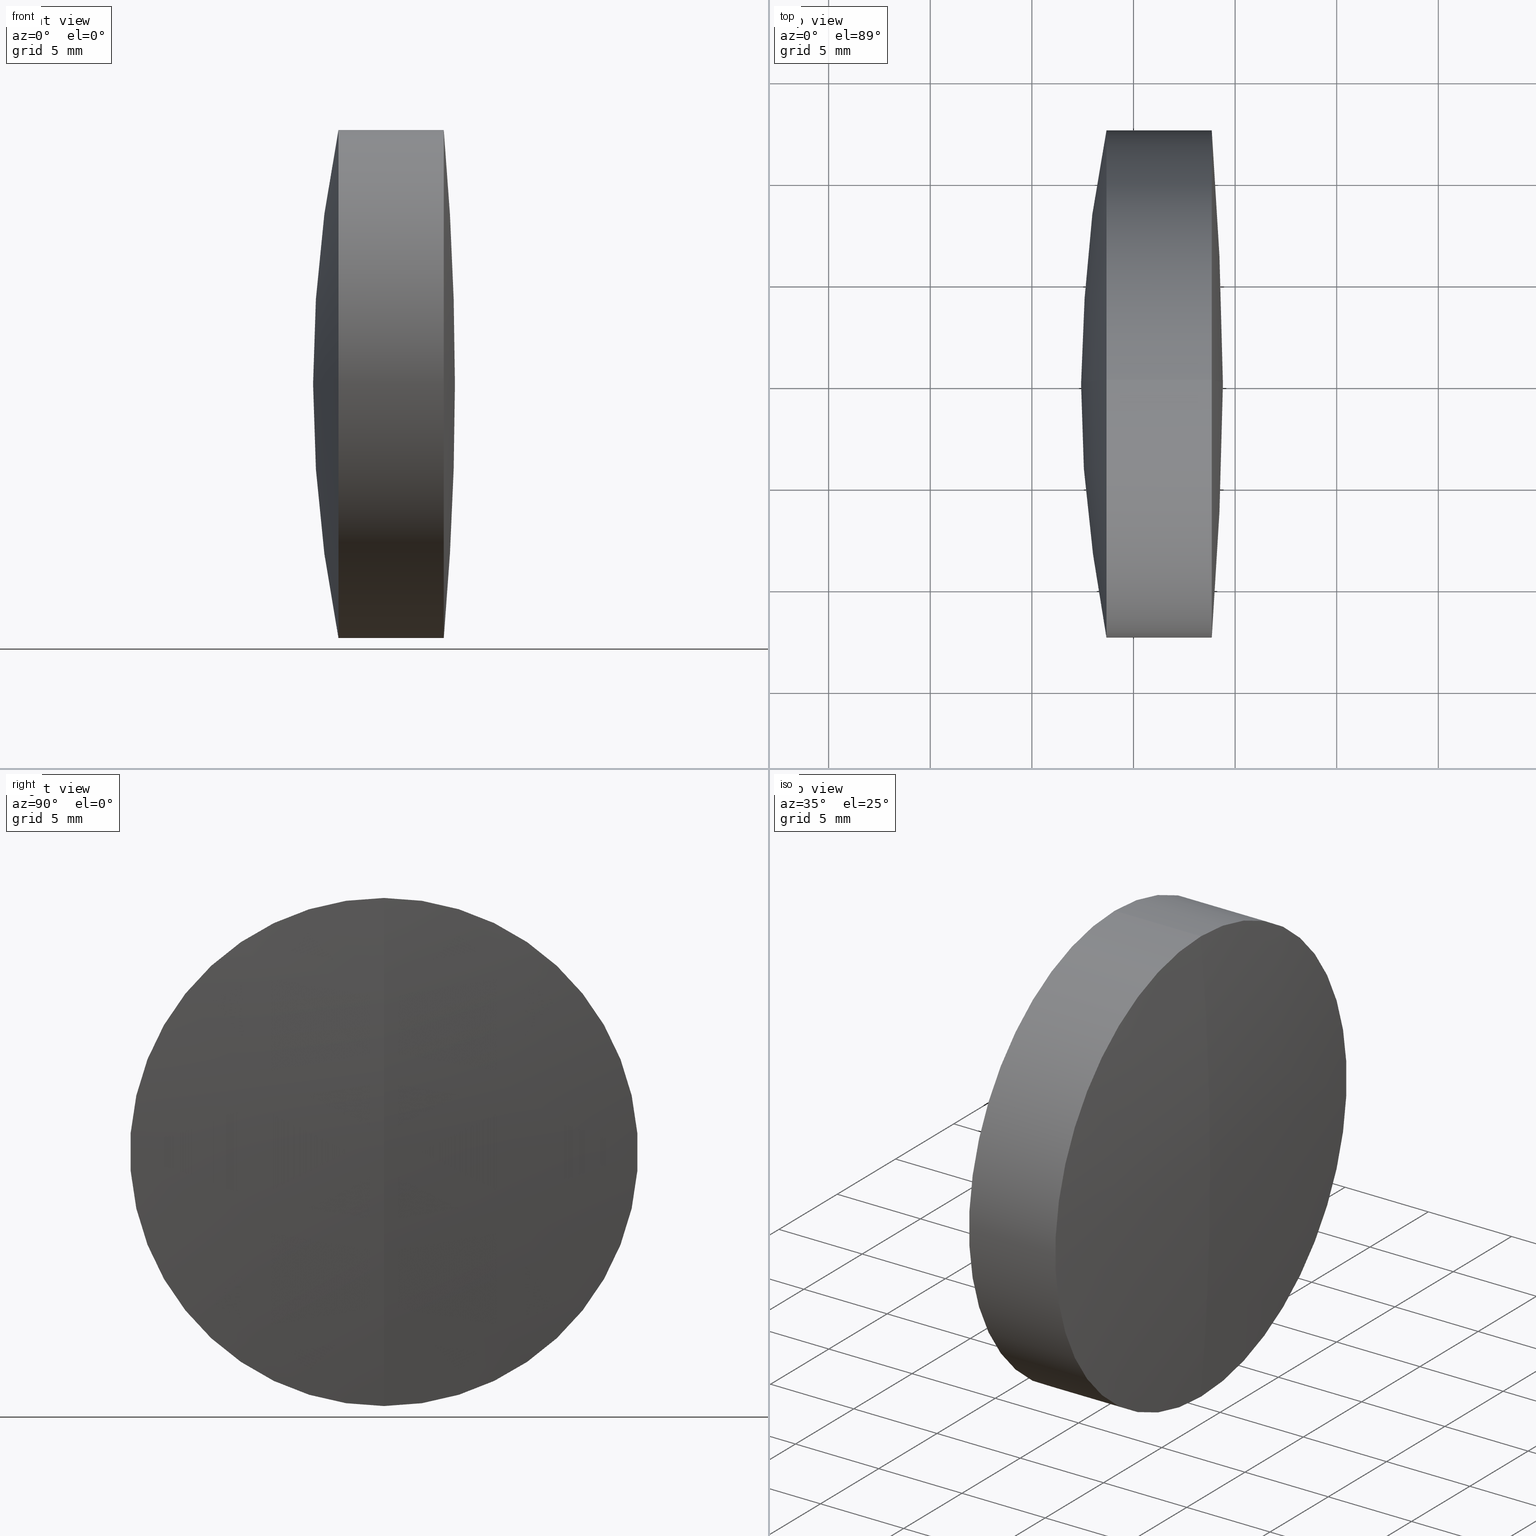
[diagram: canonical four-view strip — front | top / right | iso, engineering-drawing reading convention]
A machine part, canonical four-view strip (front | top / right | iso — engineering-drawing reading convention). The complete STEP part file that produces these views, byte-faithful:
ISO-10303-21;
HEADER;
FILE_DESCRIPTION (( 'STEP AP214' ),
    '1' );
FILE_NAME ('145042.STEP',
    '2019-05-12T03:48:51',
    ( 'user' ),
    ( '΢���й�' ),
    'SwSTEP 2.0',
    'SolidWorks 2016',
    '' );
FILE_SCHEMA (( 'AUTOMOTIVE_DESIGN' ));
ENDSEC;

DATA;
#1 = EDGE_LOOP ( 'NONE', ( #308, #330, #291 ) ) ;
#2 = EDGE_CURVE ( 'NONE', #74, #143, #54, .T. ) ;
#3 = DIRECTION ( 'NONE',  ( 0.0000000000000000000, -1.224646799147353200E-016, 1.000000000000000000 ) ) ;
#4 = AXIS2_PLACEMENT_3D ( 'NONE', #200, #98, #258 ) ;
#5 =( LENGTH_UNIT ( ) NAMED_UNIT ( * ) SI_UNIT ( .MILLI., .METRE. ) );
#6 = CARTESIAN_POINT ( 'NONE',  ( 14.87966897357473400, 0.0000000000000000000, 1.355252715606880500E-017 ) ) ;
#7 = AXIS2_PLACEMENT_3D ( 'NONE', #66, #89, #286 ) ;
#8 =( LENGTH_UNIT ( ) NAMED_UNIT ( * ) SI_UNIT ( .MILLI., .METRE. ) );
#9 = EDGE_LOOP ( 'NONE', ( #298, #135, #102, #222 ) ) ;
#10 = ORIENTED_EDGE ( 'NONE', *, *, #117, .T. ) ;
#11 = SURFACE_SIDE_STYLE ('',( #61 ) ) ;
#12 = AXIS2_PLACEMENT_3D ( 'NONE', #269, #173, #129 ) ;
#13 = APPLICATION_PROTOCOL_DEFINITION ( 'draft international standard', 'automotive_design', 1998, #296 ) ;
#14 = CARTESIAN_POINT ( 'NONE',  ( -78.10333102642515300, 0.0000000000000000000, 0.0000000000000000000 ) ) ;
#15 = FACE_OUTER_BOUND ( 'NONE', #1, .T. ) ;
#16 = CIRCLE ( 'NONE', #27, 47.02200000000010500 ) ;
#17 = APPLICATION_PROTOCOL_DEFINITION ( 'draft international standard', 'automotive_design', 1998, #210 ) ;
#18 = DIRECTION ( 'NONE',  ( 0.0000000000000000000, 0.0000000000000000000, 1.000000000000000000 ) ) ;
#19 = CARTESIAN_POINT ( 'NONE',  ( 61.90166897357483600, 0.0000000000000000000, 2.892819616631417200E-015 ) ) ;
#20 = DIRECTION ( 'NONE',  ( -1.000000000000000000, -0.0000000000000000000, -0.0000000000000000000 ) ) ;
#21 = CIRCLE ( 'NONE', #253, 63.14600000000000800 ) ;
#22 = EDGE_LOOP ( 'NONE', ( #31, #206, #306 ) ) ;
#23 = ADVANCED_FACE ( 'NONE', ( #170 ), #26, .F. ) ;
#24 = DIRECTION ( 'NONE',  ( -0.0000000000000000000, 1.000000000000000000, 1.224646799147353200E-016 ) ) ;
#25 = ORIENTED_EDGE ( 'NONE', *, *, #32, .T. ) ;
#26 = SPHERICAL_SURFACE ( 'NONE', #346, 47.02200000000010500 ) ;
#27 = AXIS2_PLACEMENT_3D ( 'NONE', #186, #268, #70 ) ;
#28 = ADVANCED_FACE ( 'NONE', ( #323 ), #138, .T. ) ;
#29 = LINE ( 'NONE', #101, #231 ) ;
#30 = SPHERICAL_SURFACE ( 'NONE', #198, 142.5050000000000000 ) ;
#31 = ORIENTED_EDGE ( 'NONE', *, *, #117, .F. ) ;
#32 = EDGE_CURVE ( 'NONE', #218, #287, #345, .T. ) ;
#33 = CARTESIAN_POINT ( 'NONE',  ( -9.702612178336682500, 1.530808498934190100E-015, -12.49999999999998900 ) ) ;
#34 =( NAMED_UNIT ( * ) SI_UNIT ( $, .STERADIAN. ) SOLID_ANGLE_UNIT ( ) );
#35 =( NAMED_UNIT ( * ) SI_UNIT ( $, .STERADIAN. ) SOLID_ANGLE_UNIT ( ) );
#36 = FACE_OUTER_BOUND ( 'NONE', #71, .T. ) ;
#37 = CARTESIAN_POINT ( 'NONE',  ( 60.20977468710700000, 0.0000000000000000000, 12.49999999999997700 ) ) ;
#38 = AXIS2_PLACEMENT_3D ( 'NONE', #216, #84, #225 ) ;
#39 =( NAMED_UNIT ( * ) PLANE_ANGLE_UNIT ( ) SI_UNIT ( $, .RADIAN. ) );
#40 = DIRECTION ( 'NONE',  ( 0.0000000000000000000, 0.0000000000000000000, 1.000000000000000000 ) ) ;
#41 =( GEOMETRIC_REPRESENTATION_CONTEXT ( 3 ) GLOBAL_UNCERTAINTY_ASSIGNED_CONTEXT ( ( #107 ) ) GLOBAL_UNIT_ASSIGNED_CONTEXT ( ( #5, #113, #226 ) ) REPRESENTATION_CONTEXT ( 'NONE', 'WORKASPACE' ) );
#42 = ORIENTED_EDGE ( 'NONE', *, *, #247, .F. ) ;
#43 = FILL_AREA_STYLE_COLOUR ( '', #278 ) ;
#44 = DIRECTION ( 'NONE',  ( 0.0000000000000000000, 0.0000000000000000000, -1.000000000000000000 ) ) ;
#45 = CYLINDRICAL_SURFACE ( 'NONE', #12, 12.49999999999998900 ) ;
#46 = CIRCLE ( 'NONE', #273, 12.49999999999998900 ) ;
#47 = EDGE_LOOP ( 'NONE', ( #347, #78, #252, #301 ) ) ;
#48 = PRESENTATION_LAYER_ASSIGNMENT (  '', '', ( #262 ) ) ;
#49 = DIRECTION ( 'NONE',  ( 0.0000000000000000000, -1.224646799147353200E-016, 1.000000000000000000 ) ) ;
#50 = CIRCLE ( 'NONE', #267, 47.02200000000010500 ) ;
#51 = ADVANCED_FACE ( 'NONE', ( #15 ), #196, .T. ) ;
#52 = ADVANCED_FACE ( 'NONE', ( #228 ), #80, .T. ) ;
#53 = FACE_OUTER_BOUND ( 'NONE', #22, .T. ) ;
#54 = CIRCLE ( 'NONE', #331, 12.49999999999998900 ) ;
#55 = ORIENTED_EDGE ( 'NONE', *, *, #294, .T. ) ;
#56 = STYLED_ITEM ( 'NONE', ( #232 ), #82 ) ;
#57 = CARTESIAN_POINT ( 'NONE',  ( 63.85238398709587700, 0.0000000000000000000, 12.49999999999997200 ) ) ;
#58 = EDGE_LOOP ( 'NONE', ( #257, #339, #25 ) ) ;
#59 = ORIENTED_EDGE ( 'NONE', *, *, #32, .F. ) ;
#60 = DIRECTION ( 'NONE',  ( -1.000000000000000000, -0.0000000000000000000, -0.0000000000000000000 ) ) ;
#61 = SURFACE_STYLE_FILL_AREA ( #201 ) ;
#62 = CIRCLE ( 'NONE', #324, 142.5050000000000000 ) ;
#63 = CARTESIAN_POINT ( 'NONE',  ( 63.85238398709587700, 0.0000000000000000000, 0.0000000000000000000 ) ) ;
#64 = ORIENTED_EDGE ( 'NONE', *, *, #112, .T. ) ;
#65 = ORIENTED_EDGE ( 'NONE', *, *, #72, .T. ) ;
#66 = CARTESIAN_POINT ( 'NONE',  ( 60.20977468710700000, 0.0000000000000000000, 0.0000000000000000000 ) ) ;
#67 = MECHANICAL_DESIGN_GEOMETRIC_PRESENTATION_REPRESENTATION (  '', ( #262 ), #88 ) ;
#68 = CARTESIAN_POINT ( 'NONE',  ( 57.42166897357473200, 0.0000000000000000000, -2.514284219101401300E-014 ) ) ;
#69 = ORIENTED_EDGE ( 'NONE', *, *, #256, .F. ) ;
#70 = DIRECTION ( 'NONE',  ( 0.0000000000000000000, 0.0000000000000000000, -1.000000000000000000 ) ) ;
#71 = EDGE_LOOP ( 'NONE', ( #309, #219, #59, #69 ) ) ;
#72 = EDGE_CURVE ( 'NONE', #191, #114, #167, .T. ) ;
#73 = DIRECTION ( 'NONE',  ( 0.0000000000000000000, 1.000000000000000000, 0.0000000000000000000 ) ) ;
#74 = VERTEX_POINT ( 'NONE', #97 ) ;
#75 = VERTEX_POINT ( 'NONE', #124 ) ;
#76 = DIRECTION ( 'NONE',  ( 0.0000000000000000000, 0.0000000000000000000, 1.000000000000000000 ) ) ;
#77 = AXIS2_PLACEMENT_3D ( 'NONE', #6, #147, #3 ) ;
#78 = ORIENTED_EDGE ( 'NONE', *, *, #288, .T. ) ;
#79 = ADVANCED_FACE ( 'NONE', ( #245 ), #246, .T. ) ;
#80 = SPHERICAL_SURFACE ( 'NONE', #95, 47.02200000000010500 ) ;
#81 = PRESENTATION_STYLE_ASSIGNMENT (( #263 ) ) ;
#82 = MANIFOLD_SOLID_BREP ( '��ת1', #272 ) ;
#83 = COLOUR_RGB ( '',1.000000000000000000, 1.000000000000000000, 1.000000000000000000 ) ;
#84 = DIRECTION ( 'NONE',  ( -1.000000000000000000, -0.0000000000000000000, -0.0000000000000000000 ) ) ;
#85 = FACE_OUTER_BOUND ( 'NONE', #146, .T. ) ;
#86 = CARTESIAN_POINT ( 'NONE',  ( -9.702612178336682500, 0.0000000000000000000, 0.0000000000000000000 ) ) ;
#87 = ORIENTED_EDGE ( 'NONE', *, *, #274, .T. ) ;
#88 =( GEOMETRIC_REPRESENTATION_CONTEXT ( 3 ) GLOBAL_UNCERTAINTY_ASSIGNED_CONTEXT ( ( #242 ) ) GLOBAL_UNIT_ASSIGNED_CONTEXT ( ( #205, #203, #35 ) ) REPRESENTATION_CONTEXT ( 'NONE', 'WORKASPACE' ) );
#89 = DIRECTION ( 'NONE',  ( -1.000000000000000000, -0.0000000000000000000, -0.0000000000000000000 ) ) ;
#90 = FACE_OUTER_BOUND ( 'NONE', #168, .T. ) ;
#91 = DIRECTION ( 'NONE',  ( -1.000000000000000000, -0.0000000000000000000, -0.0000000000000000000 ) ) ;
#92 = CARTESIAN_POINT ( 'NONE',  ( 120.5676689735747400, 0.0000000000000000000, -2.900941952996195400E-014 ) ) ;
#93 = EDGE_CURVE ( 'NONE', #75, #287, #329, .T. ) ;
#94 = ORIENTED_EDGE ( 'NONE', *, *, #288, .F. ) ;
#95 = AXIS2_PLACEMENT_3D ( 'NONE', #265, #317, #234 ) ;
#96 = SURFACE_STYLE_USAGE ( .BOTH. , #11 ) ;
#97 = CARTESIAN_POINT ( 'NONE',  ( 60.20977468710700000, 0.0000000000000000000, 12.49999999999998900 ) ) ;
#98 = DIRECTION ( 'NONE',  ( -1.000000000000000000, -0.0000000000000000000, -0.0000000000000000000 ) ) ;
#99 = DIRECTION ( 'NONE',  ( 0.0000000000000000000, 0.0000000000000000000, -1.000000000000000000 ) ) ;
#100 = CARTESIAN_POINT ( 'NONE',  ( -0.5519199926577972300, 0.0000000000000000000, 0.0000000000000000000 ) ) ;
#101 = CARTESIAN_POINT ( 'NONE',  ( -9.702612178336682500, 0.0000000000000000000, 12.49999999999998900 ) ) ;
#102 = ORIENTED_EDGE ( 'NONE', *, *, #256, .T. ) ;
#103 = CARTESIAN_POINT ( 'NONE',  ( 58.67124487653986600, 1.530808498934192300E-015, -12.50000000000003700 ) ) ;
#104 = DIRECTION ( 'NONE',  ( 0.0000000000000000000, -1.000000000000000000, 0.0000000000000000000 ) ) ;
#105 = SPHERICAL_SURFACE ( 'NONE', #277, 63.14600000000000800 ) ;
#106 = CIRCLE ( 'NONE', #303, 63.14600000000000800 ) ;
#107 = UNCERTAINTY_MEASURE_WITH_UNIT (LENGTH_MEASURE( 1.000000000000000100E-005 ), #5, 'distance_accuracy_value', 'NONE');
#108 = EDGE_CURVE ( 'NONE', #159, #110, #106, .T. ) ;
#109 = PRODUCT_DEFINITION ( 'δ֪', '', #223, #319 ) ;
#110 = VERTEX_POINT ( 'NONE', #68 ) ;
#111 = CLOSED_SHELL ( 'NONE', ( #299, #275, #166, #23, #28, #194 ) ) ;
#112 = EDGE_CURVE ( 'NONE', #287, #218, #300, .T. ) ;
#113 =( NAMED_UNIT ( * ) PLANE_ANGLE_UNIT ( ) SI_UNIT ( $, .RADIAN. ) );
#114 = VERTEX_POINT ( 'NONE', #207 ) ;
#115 = DIRECTION ( 'NONE',  ( -1.000000000000000000, -0.0000000000000000000, -0.0000000000000000000 ) ) ;
#116 = FILL_AREA_STYLE_COLOUR ( '', #211 ) ;
#117 = EDGE_CURVE ( 'NONE', #136, #143, #50, .T. ) ;
#118 = CARTESIAN_POINT ( 'NONE',  ( -78.10333102642515300, 0.0000000000000000000, 0.0000000000000000000 ) ) ;
#119 = LINE ( 'NONE', #161, #342 ) ;
#120 = CARTESIAN_POINT ( 'NONE',  ( -78.10333102642515300, 0.0000000000000000000, 0.0000000000000000000 ) ) ;
#121 = SURFACE_STYLE_FILL_AREA ( #134 ) ;
#122 = DIRECTION ( 'NONE',  ( 0.0000000000000000000, 0.0000000000000000000, 1.000000000000000000 ) ) ;
#123 = CARTESIAN_POINT ( 'NONE',  ( 58.67124487653985900, 0.0000000000000000000, 0.0000000000000000000 ) ) ;
#124 = CARTESIAN_POINT ( 'NONE',  ( 61.90166897357483600, 0.0000000000000000000, 2.892819616631417200E-015 ) ) ;
#125 = DIRECTION ( 'NONE',  ( 0.0000000000000000000, 0.0000000000000000000, 1.000000000000000000 ) ) ;
#126 = CARTESIAN_POINT ( 'NONE',  ( 60.20977468710700000, 0.0000000000000000000, 0.0000000000000000000 ) ) ;
#127 = EDGE_CURVE ( 'NONE', #142, #159, #46, .T. ) ;
#128 = ORIENTED_EDGE ( 'NONE', *, *, #72, .F. ) ;
#129 = DIRECTION ( 'NONE',  ( 0.0000000000000000000, 0.0000000000000000000, 1.000000000000000000 ) ) ;
#130 = DIRECTION ( 'NONE',  ( 0.0000000000000000000, 0.0000000000000000000, 1.000000000000000000 ) ) ;
#131 = DIRECTION ( 'NONE',  ( 0.0000000000000000000, 1.000000000000000000, 0.0000000000000000000 ) ) ;
#132 = CARTESIAN_POINT ( 'NONE',  ( 14.87966897357473400, 0.0000000000000000000, 1.355252715606880500E-017 ) ) ;
#133 =( GEOMETRIC_REPRESENTATION_CONTEXT ( 3 ) GLOBAL_UNCERTAINTY_ASSIGNED_CONTEXT ( ( #295 ) ) GLOBAL_UNIT_ASSIGNED_CONTEXT ( ( #321, #39, #343 ) ) REPRESENTATION_CONTEXT ( 'NONE', 'WORKASPACE' ) );
#134 = FILL_AREA_STYLE ('',( #197 ) ) ;
#135 = ORIENTED_EDGE ( 'NONE', *, *, #302, .T. ) ;
#136 = VERTEX_POINT ( 'NONE', #19 ) ;
#137 = AXIS2_PLACEMENT_3D ( 'NONE', #126, #293, #18 ) ;
#138 = CYLINDRICAL_SURFACE ( 'NONE', #192, 12.49999999999997500 ) ;
#139 = CIRCLE ( 'NONE', #7, 12.49999999999998900 ) ;
#140 = ADVANCED_BREP_SHAPE_REPRESENTATION ( '145042', ( #82, #176, #244 ), #133 ) ;
#141 = PRODUCT ( '145042', '145042', '', ( #337 ) ) ;
#142 = VERTEX_POINT ( 'NONE', #254 ) ;
#143 = VERTEX_POINT ( 'NONE', #181 ) ;
#144 = PRODUCT_RELATED_PRODUCT_CATEGORY ( 'part', '', ( #141 ) ) ;
#145 = DIRECTION ( 'NONE',  ( 0.0000000000000000000, 1.000000000000000000, 0.0000000000000000000 ) ) ;
#146 = EDGE_LOOP ( 'NONE', ( #188, #55, #204 ) ) ;
#147 = DIRECTION ( 'NONE',  ( -0.0000000000000000000, 1.000000000000000000, 1.224646799147353200E-016 ) ) ;
#148 = SURFACE_SIDE_STYLE ('',( #285 ) ) ;
#149 = VERTEX_POINT ( 'NONE', #57 ) ;
#150 = AXIS2_PLACEMENT_3D ( 'NONE', #239, #187, #214 ) ;
#151 = CARTESIAN_POINT ( 'NONE',  ( 64.40166897357484300, 0.0000000000000000000, 8.725914605624677400E-015 ) ) ;
#152 = DIRECTION ( 'NONE',  ( 0.0000000000000000000, 0.0000000000000000000, 1.000000000000000000 ) ) ;
#153 = DIRECTION ( 'NONE',  ( -1.000000000000000000, -0.0000000000000000000, -0.0000000000000000000 ) ) ;
#154 = AXIS2_PLACEMENT_3D ( 'NONE', #86, #208, #283 ) ;
#155 = EDGE_LOOP ( 'NONE', ( #344, #314, #64 ) ) ;
#156 = DIRECTION ( 'NONE',  ( 1.000000000000000000, 0.0000000000000000000, 0.0000000000000000000 ) ) ;
#157 = DIRECTION ( 'NONE',  ( -1.000000000000000000, -0.0000000000000000000, -0.0000000000000000000 ) ) ;
#158 = DIRECTION ( 'NONE',  ( -1.000000000000000000, -0.0000000000000000000, -0.0000000000000000000 ) ) ;
#159 = VERTEX_POINT ( 'NONE', #103 ) ;
#160 = CARTESIAN_POINT ( 'NONE',  ( 120.5676689735747400, 0.0000000000000000000, -2.900941952996195400E-014 ) ) ;
#161 = CARTESIAN_POINT ( 'NONE',  ( -0.5519199926577972300, 0.0000000000000000000, 12.49999999999997500 ) ) ;
#162 = VECTOR ( 'NONE', #60, 1000.000000000000000 ) ;
#163 = ORIENTED_EDGE ( 'NONE', *, *, #165, .F. ) ;
#164 = AXIS2_PLACEMENT_3D ( 'NONE', #63, #91, #125 ) ;
#165 = EDGE_CURVE ( 'NONE', #136, #74, #233, .T. ) ;
#166 = ADVANCED_FACE ( 'NONE', ( #212 ), #180, .F. ) ;
#167 = CIRCLE ( 'NONE', #209, 142.5050000000000000 ) ;
#168 = EDGE_LOOP ( 'NONE', ( #94, #240, #264, #334 ) ) ;
#169 = CIRCLE ( 'NONE', #255, 12.49999999999997200 ) ;
#170 = FACE_OUTER_BOUND ( 'NONE', #58, .T. ) ;
#171 = AXIS2_PLACEMENT_3D ( 'NONE', #92, #131, #185 ) ;
#172 = DIRECTION ( 'NONE',  ( -0.0000000000000000000, 1.000000000000000000, 1.224646799147353200E-016 ) ) ;
#173 = DIRECTION ( 'NONE',  ( -1.000000000000000000, -0.0000000000000000000, -0.0000000000000000000 ) ) ;
#174 = EDGE_LOOP ( 'NONE', ( #250, #65, #42 ) ) ;
#175 = DIRECTION ( 'NONE',  ( 0.0000000000000000000, 0.0000000000000000000, 1.000000000000000000 ) ) ;
#176 = MANIFOLD_SOLID_BREP ( '��ת3', #111 ) ;
#177 = DIRECTION ( 'NONE',  ( 0.0000000000000000000, 0.0000000000000000000, 1.000000000000000000 ) ) ;
#178 = SPHERICAL_SURFACE ( 'NONE', #150, 47.02200000000010500 ) ;
#179 = CARTESIAN_POINT ( 'NONE',  ( 60.20977468710700000, 1.530808498934188600E-015, -12.49999999999997700 ) ) ;
#180 = SPHERICAL_SURFACE ( 'NONE', #338, 47.02200000000010500 ) ;
#181 = CARTESIAN_POINT ( 'NONE',  ( 60.20977468710700000, 1.530808498934190100E-015, -12.49999999999998900 ) ) ;
#182 = DIRECTION ( 'NONE',  ( 0.0000000000000000000, 0.0000000000000000000, 1.000000000000000000 ) ) ;
#183 = MECHANICAL_DESIGN_GEOMETRIC_PRESENTATION_REPRESENTATION (  '', ( #310 ), #41 ) ;
#184 = CARTESIAN_POINT ( 'NONE',  ( 0.0000000000000000000, 0.0000000000000000000, 0.0000000000000000000 ) ) ;
#185 = DIRECTION ( 'NONE',  ( 0.0000000000000000000, 0.0000000000000000000, 1.000000000000000000 ) ) ;
#186 = CARTESIAN_POINT ( 'NONE',  ( 14.87966897357473400, 0.0000000000000000000, 1.355252715606880500E-017 ) ) ;
#187 = DIRECTION ( 'NONE',  ( 0.0000000000000000000, 1.000000000000000000, 0.0000000000000000000 ) ) ;
#188 = ORIENTED_EDGE ( 'NONE', *, *, #108, .F. ) ;
#189 = DIRECTION ( 'NONE',  ( 0.0000000000000000000, 1.000000000000000000, 0.0000000000000000000 ) ) ;
#190 = LINE ( 'NONE', #33, #162 ) ;
#191 = VERTEX_POINT ( 'NONE', #151 ) ;
#192 = AXIS2_PLACEMENT_3D ( 'NONE', #100, #316, #336 ) ;
#193 = EDGE_LOOP ( 'NONE', ( #163, #10, #276 ) ) ;
#194 = ADVANCED_FACE ( 'NONE', ( #305 ), #30, .T. ) ;
#195 = VECTOR ( 'NONE', #259, 1000.000000000000000 ) ;
#196 = SPHERICAL_SURFACE ( 'NONE', #171, 63.14600000000000800 ) ;
#197 = FILL_AREA_STYLE_COLOUR ( '', #83 ) ;
#198 = AXIS2_PLACEMENT_3D ( 'NONE', #320, #145, #152 ) ;
#199 = EDGE_CURVE ( 'NONE', #75, #218, #16, .T. ) ;
#200 = CARTESIAN_POINT ( 'NONE',  ( -0.5519199926577972300, 0.0000000000000000000, 0.0000000000000000000 ) ) ;
#201 = FILL_AREA_STYLE ('',( #43 ) ) ;
#202 =( NAMED_UNIT ( * ) PLANE_ANGLE_UNIT ( ) SI_UNIT ( $, .RADIAN. ) );
#203 =( NAMED_UNIT ( * ) PLANE_ANGLE_UNIT ( ) SI_UNIT ( $, .RADIAN. ) );
#204 = ORIENTED_EDGE ( 'NONE', *, *, #220, .T. ) ;
#205 =( LENGTH_UNIT ( ) NAMED_UNIT ( * ) SI_UNIT ( .MILLI., .METRE. ) );
#206 = ORIENTED_EDGE ( 'NONE', *, *, #165, .T. ) ;
#207 = CARTESIAN_POINT ( 'NONE',  ( 63.85238398709587700, 1.530808498934188200E-015, -12.49999999999997200 ) ) ;
#208 = DIRECTION ( 'NONE',  ( -1.000000000000000000, -0.0000000000000000000, -0.0000000000000000000 ) ) ;
#209 = AXIS2_PLACEMENT_3D ( 'NONE', #14, #24, #49 ) ;
#210 = APPLICATION_CONTEXT ( 'automotive_design' ) ;
#211 = COLOUR_RGB ( '',1.000000000000000000, 1.000000000000000000, 1.000000000000000000 ) ;
#212 = FACE_OUTER_BOUND ( 'NONE', #155, .T. ) ;
#213 = DIRECTION ( 'NONE',  ( -1.000000000000000000, -0.0000000000000000000, -0.0000000000000000000 ) ) ;
#214 = DIRECTION ( 'NONE',  ( 0.0000000000000000000, 0.0000000000000000000, 1.000000000000000000 ) ) ;
#215 = CARTESIAN_POINT ( 'NONE',  ( 14.87966897357473400, 0.0000000000000000000, 1.355252715606880500E-017 ) ) ;
#216 = CARTESIAN_POINT ( 'NONE',  ( 60.20977468710700000, 0.0000000000000000000, 0.0000000000000000000 ) ) ;
#217 = CIRCLE ( 'NONE', #164, 12.49999999999997200 ) ;
#218 = VERTEX_POINT ( 'NONE', #37 ) ;
#219 = ORIENTED_EDGE ( 'NONE', *, *, #238, .T. ) ;
#220 = EDGE_CURVE ( 'NONE', #142, #110, #21, .T. ) ;
#221 = AXIS2_PLACEMENT_3D ( 'NONE', #341, #297, #44 ) ;
#222 = ORIENTED_EDGE ( 'NONE', *, *, #112, .F. ) ;
#223 = PRODUCT_DEFINITION_FORMATION_WITH_SPECIFIED_SOURCE ( '�κ�', '', #141, .NOT_KNOWN. ) ;
#224 = PRESENTATION_LAYER_ASSIGNMENT (  '', '', ( #56 ) ) ;
#225 = DIRECTION ( 'NONE',  ( 0.0000000000000000000, 0.0000000000000000000, 1.000000000000000000 ) ) ;
#226 =( NAMED_UNIT ( * ) SI_UNIT ( $, .STERADIAN. ) SOLID_ANGLE_UNIT ( ) );
#227 = DIRECTION ( 'NONE',  ( 0.0000000000000000000, -1.224646799147353200E-016, 1.000000000000000000 ) ) ;
#228 = FACE_OUTER_BOUND ( 'NONE', #193, .T. ) ;
#229 = SURFACE_SIDE_STYLE ('',( #121 ) ) ;
#230 = DIRECTION ( 'NONE',  ( 0.0000000000000000000, 1.000000000000000000, 0.0000000000000000000 ) ) ;
#231 = VECTOR ( 'NONE', #20, 1000.000000000000000 ) ;
#232 = PRESENTATION_STYLE_ASSIGNMENT (( #333 ) ) ;
#233 = CIRCLE ( 'NONE', #221, 47.02200000000010500 ) ;
#234 = DIRECTION ( 'NONE',  ( 0.0000000000000000000, 0.0000000000000000000, 1.000000000000000000 ) ) ;
#235 = AXIS2_PLACEMENT_3D ( 'NONE', #118, #230, #122 ) ;
#236 = DIRECTION ( 'NONE',  ( 0.0000000000000000000, -1.224646799147353200E-016, 1.000000000000000000 ) ) ;
#237 = PRESENTATION_LAYER_ASSIGNMENT (  '', '', ( #310 ) ) ;
#238 = EDGE_CURVE ( 'NONE', #114, #287, #326, .T. ) ;
#239 = CARTESIAN_POINT ( 'NONE',  ( 14.87966897357473400, 0.0000000000000000000, 1.355252715606880500E-017 ) ) ;
#240 = ORIENTED_EDGE ( 'NONE', *, *, #266, .T. ) ;
#241 = CARTESIAN_POINT ( 'NONE',  ( 14.87966897357473400, 0.0000000000000000000, 1.355252715606880500E-017 ) ) ;
#242 = UNCERTAINTY_MEASURE_WITH_UNIT (LENGTH_MEASURE( 1.000000000000000100E-005 ), #205, 'distance_accuracy_value', 'NONE');
#243 = DIRECTION ( 'NONE',  ( 0.0000000000000000000, 0.0000000000000000000, -1.000000000000000000 ) ) ;
#244 = AXIS2_PLACEMENT_3D ( 'NONE', #184, #290, #156 ) ;
#245 = FACE_OUTER_BOUND ( 'NONE', #47, .T. ) ;
#246 = CYLINDRICAL_SURFACE ( 'NONE', #154, 12.49999999999998900 ) ;
#247 = EDGE_CURVE ( 'NONE', #149, #114, #217, .T. ) ;
#248 = MECHANICAL_DESIGN_GEOMETRIC_PRESENTATION_REPRESENTATION (  '', ( #56 ), #279 ) ;
#249 = PRODUCT_DEFINITION_SHAPE ( 'NONE', 'NONE',  #109 ) ;
#250 = ORIENTED_EDGE ( 'NONE', *, *, #274, .F. ) ;
#251 = FACE_OUTER_BOUND ( 'NONE', #174, .T. ) ;
#252 = ORIENTED_EDGE ( 'NONE', *, *, #127, .F. ) ;
#253 = AXIS2_PLACEMENT_3D ( 'NONE', #271, #104, #243 ) ;
#254 = CARTESIAN_POINT ( 'NONE',  ( 58.67124487653986600, 0.0000000000000000000, 12.50000000000000700 ) ) ;
#255 = AXIS2_PLACEMENT_3D ( 'NONE', #260, #157, #318 ) ;
#256 = EDGE_CURVE ( 'NONE', #149, #218, #119, .T. ) ;
#257 = ORIENTED_EDGE ( 'NONE', *, *, #93, .F. ) ;
#258 = DIRECTION ( 'NONE',  ( 0.0000000000000000000, 0.0000000000000000000, 1.000000000000000000 ) ) ;
#259 = DIRECTION ( 'NONE',  ( -1.000000000000000000, -0.0000000000000000000, -0.0000000000000000000 ) ) ;
#260 = CARTESIAN_POINT ( 'NONE',  ( 63.85238398709587700, 0.0000000000000000000, 0.0000000000000000000 ) ) ;
#261 = CYLINDRICAL_SURFACE ( 'NONE', #4, 12.49999999999997500 ) ;
#262 = STYLED_ITEM ( 'NONE', ( #340 ), #140 ) ;
#263 = SURFACE_STYLE_USAGE ( .BOTH. , #229 ) ;
#264 = ORIENTED_EDGE ( 'NONE', *, *, #312, .T. ) ;
#265 = CARTESIAN_POINT ( 'NONE',  ( 14.87966897357473400, 0.0000000000000000000, 1.355252715606880500E-017 ) ) ;
#266 = EDGE_CURVE ( 'NONE', #143, #74, #139, .T. ) ;
#267 = AXIS2_PLACEMENT_3D ( 'NONE', #132, #289, #236 ) ;
#268 = DIRECTION ( 'NONE',  ( 0.0000000000000000000, -1.000000000000000000, 0.0000000000000000000 ) ) ;
#269 = CARTESIAN_POINT ( 'NONE',  ( -9.702612178336682500, 0.0000000000000000000, 0.0000000000000000000 ) ) ;
#270 = CARTESIAN_POINT ( 'NONE',  ( 60.20977468710700000, 0.0000000000000000000, 0.0000000000000000000 ) ) ;
#271 = CARTESIAN_POINT ( 'NONE',  ( 120.5676689735747400, 0.0000000000000000000, -2.900941952996195400E-014 ) ) ;
#272 = CLOSED_SHELL ( 'NONE', ( #52, #79, #51, #328, #304, #325 ) ) ;
#273 = AXIS2_PLACEMENT_3D ( 'NONE', #282, #115, #40 ) ;
#274 = EDGE_CURVE ( 'NONE', #191, #149, #62, .T. ) ;
#275 = ADVANCED_FACE ( 'NONE', ( #36 ), #261, .T. ) ;
#276 = ORIENTED_EDGE ( 'NONE', *, *, #2, .F. ) ;
#277 = AXIS2_PLACEMENT_3D ( 'NONE', #160, #73, #76 ) ;
#278 = COLOUR_RGB ( '',1.000000000000000000, 1.000000000000000000, 1.000000000000000000 ) ;
#279 =( GEOMETRIC_REPRESENTATION_CONTEXT ( 3 ) GLOBAL_UNCERTAINTY_ASSIGNED_CONTEXT ( ( #327 ) ) GLOBAL_UNIT_ASSIGNED_CONTEXT ( ( #8, #202, #34 ) ) REPRESENTATION_CONTEXT ( 'NONE', 'WORKASPACE' ) );
#280 = DIRECTION ( 'NONE',  ( 0.0000000000000000000, 1.000000000000000000, 0.0000000000000000000 ) ) ;
#281 = EDGE_LOOP ( 'NONE', ( #128, #87, #335 ) ) ;
#282 = CARTESIAN_POINT ( 'NONE',  ( 58.67124487653985900, 0.0000000000000000000, 0.0000000000000000000 ) ) ;
#283 = DIRECTION ( 'NONE',  ( 0.0000000000000000000, 0.0000000000000000000, 1.000000000000000000 ) ) ;
#284 = SHAPE_DEFINITION_REPRESENTATION ( #249, #140 ) ;
#285 = SURFACE_STYLE_FILL_AREA ( #313 ) ;
#286 = DIRECTION ( 'NONE',  ( 0.0000000000000000000, 0.0000000000000000000, 1.000000000000000000 ) ) ;
#287 = VERTEX_POINT ( 'NONE', #179 ) ;
#288 = EDGE_CURVE ( 'NONE', #143, #159, #190, .T. ) ;
#289 = DIRECTION ( 'NONE',  ( -0.0000000000000000000, 1.000000000000000000, 1.224646799147353200E-016 ) ) ;
#290 = DIRECTION ( 'NONE',  ( 0.0000000000000000000, 0.0000000000000000000, 1.000000000000000000 ) ) ;
#291 = ORIENTED_EDGE ( 'NONE', *, *, #220, .F. ) ;
#292 = AXIS2_PLACEMENT_3D ( 'NONE', #123, #213, #175 ) ;
#293 = DIRECTION ( 'NONE',  ( -1.000000000000000000, -0.0000000000000000000, -0.0000000000000000000 ) ) ;
#294 = EDGE_CURVE ( 'NONE', #159, #142, #322, .T. ) ;
#295 = UNCERTAINTY_MEASURE_WITH_UNIT (LENGTH_MEASURE( 1.000000000000000100E-005 ), #321, 'distance_accuracy_value', 'NONE');
#296 = APPLICATION_CONTEXT ( 'automotive_design' ) ;
#297 = DIRECTION ( 'NONE',  ( 0.0000000000000000000, -1.000000000000000000, 0.0000000000000000000 ) ) ;
#298 = ORIENTED_EDGE ( 'NONE', *, *, #238, .F. ) ;
#299 = ADVANCED_FACE ( 'NONE', ( #251 ), #307, .T. ) ;
#300 = CIRCLE ( 'NONE', #38, 12.49999999999997900 ) ;
#301 = ORIENTED_EDGE ( 'NONE', *, *, #312, .F. ) ;
#302 = EDGE_CURVE ( 'NONE', #114, #149, #169, .T. ) ;
#303 = AXIS2_PLACEMENT_3D ( 'NONE', #332, #172, #227 ) ;
#304 = ADVANCED_FACE ( 'NONE', ( #90 ), #45, .T. ) ;
#305 = FACE_OUTER_BOUND ( 'NONE', #281, .T. ) ;
#306 = ORIENTED_EDGE ( 'NONE', *, *, #266, .F. ) ;
#307 = SPHERICAL_SURFACE ( 'NONE', #235, 142.5050000000000000 ) ;
#308 = ORIENTED_EDGE ( 'NONE', *, *, #127, .T. ) ;
#309 = ORIENTED_EDGE ( 'NONE', *, *, #247, .T. ) ;
#310 = STYLED_ITEM ( 'NONE', ( #81 ), #176 ) ;
#311 = CARTESIAN_POINT ( 'NONE',  ( -0.5519199926577972300, 1.530808498934188400E-015, -12.49999999999997500 ) ) ;
#312 = EDGE_CURVE ( 'NONE', #74, #142, #29, .T. ) ;
#313 = FILL_AREA_STYLE ('',( #116 ) ) ;
#314 = ORIENTED_EDGE ( 'NONE', *, *, #93, .T. ) ;
#315 = DIRECTION ( 'NONE',  ( 0.0000000000000000000, -1.000000000000000000, 0.0000000000000000000 ) ) ;
#316 = DIRECTION ( 'NONE',  ( -1.000000000000000000, -0.0000000000000000000, -0.0000000000000000000 ) ) ;
#317 = DIRECTION ( 'NONE',  ( 0.0000000000000000000, 1.000000000000000000, 0.0000000000000000000 ) ) ;
#318 = DIRECTION ( 'NONE',  ( 0.0000000000000000000, 0.0000000000000000000, 1.000000000000000000 ) ) ;
#319 = PRODUCT_DEFINITION_CONTEXT ( 'detailed design', #210, 'design' ) ;
#320 = CARTESIAN_POINT ( 'NONE',  ( -78.10333102642515300, 0.0000000000000000000, 0.0000000000000000000 ) ) ;
#321 =( LENGTH_UNIT ( ) NAMED_UNIT ( * ) SI_UNIT ( .MILLI., .METRE. ) );
#322 = CIRCLE ( 'NONE', #292, 12.49999999999998900 ) ;
#323 = FACE_OUTER_BOUND ( 'NONE', #9, .T. ) ;
#324 = AXIS2_PLACEMENT_3D ( 'NONE', #120, #315, #99 ) ;
#325 = ADVANCED_FACE ( 'NONE', ( #53 ), #178, .T. ) ;
#326 = LINE ( 'NONE', #311, #195 ) ;
#327 = UNCERTAINTY_MEASURE_WITH_UNIT (LENGTH_MEASURE( 1.000000000000000100E-005 ), #8, 'distance_accuracy_value', 'NONE');
#328 = ADVANCED_FACE ( 'NONE', ( #85 ), #105, .T. ) ;
#329 = CIRCLE ( 'NONE', #77, 47.02200000000010500 ) ;
#330 = ORIENTED_EDGE ( 'NONE', *, *, #108, .T. ) ;
#331 = AXIS2_PLACEMENT_3D ( 'NONE', #270, #158, #130 ) ;
#332 = CARTESIAN_POINT ( 'NONE',  ( 120.5676689735747400, 0.0000000000000000000, -2.900941952996195400E-014 ) ) ;
#333 = SURFACE_STYLE_USAGE ( .BOTH. , #148 ) ;
#334 = ORIENTED_EDGE ( 'NONE', *, *, #294, .F. ) ;
#335 = ORIENTED_EDGE ( 'NONE', *, *, #302, .F. ) ;
#336 = DIRECTION ( 'NONE',  ( 0.0000000000000000000, 0.0000000000000000000, 1.000000000000000000 ) ) ;
#337 = PRODUCT_CONTEXT ( 'NONE', #296, 'mechanical' ) ;
#338 = AXIS2_PLACEMENT_3D ( 'NONE', #241, #280, #177 ) ;
#339 = ORIENTED_EDGE ( 'NONE', *, *, #199, .T. ) ;
#340 = PRESENTATION_STYLE_ASSIGNMENT (( #96 ) ) ;
#341 = CARTESIAN_POINT ( 'NONE',  ( 14.87966897357473400, 0.0000000000000000000, 1.355252715606880500E-017 ) ) ;
#342 = VECTOR ( 'NONE', #153, 1000.000000000000000 ) ;
#343 =( NAMED_UNIT ( * ) SI_UNIT ( $, .STERADIAN. ) SOLID_ANGLE_UNIT ( ) );
#344 = ORIENTED_EDGE ( 'NONE', *, *, #199, .F. ) ;
#345 = CIRCLE ( 'NONE', #137, 12.49999999999997900 ) ;
#346 = AXIS2_PLACEMENT_3D ( 'NONE', #215, #189, #182 ) ;
#347 = ORIENTED_EDGE ( 'NONE', *, *, #2, .T. ) ;
ENDSEC;
END-ISO-10303-21;
